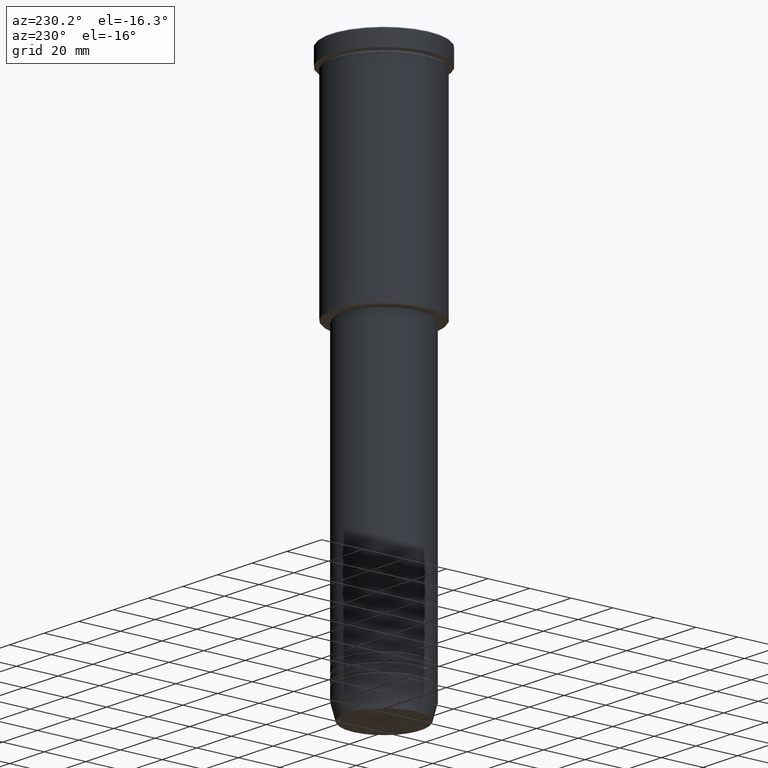
[diagram: clean part render]
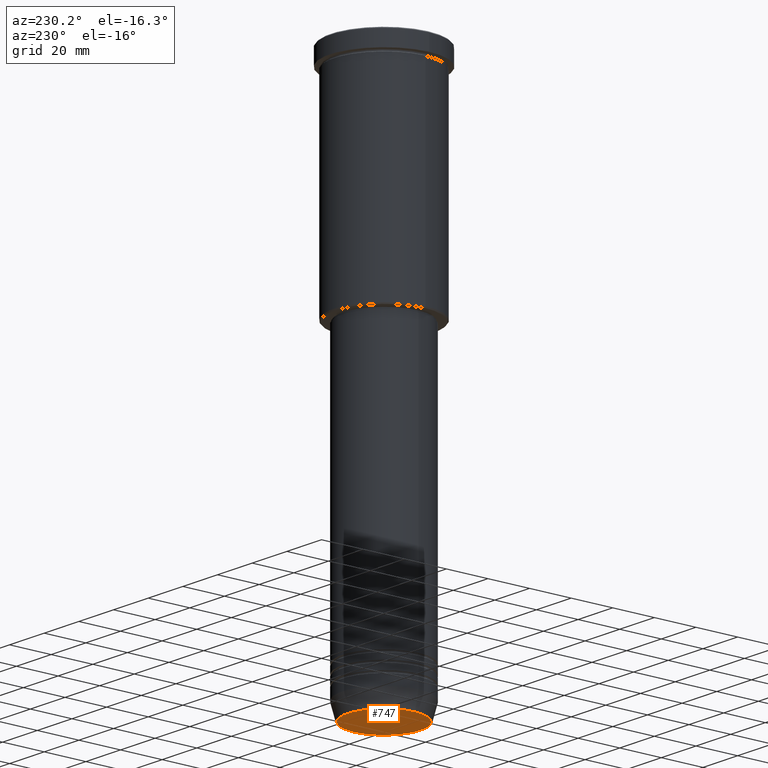
[diagram: same view with one face highlighted and labeled with its STEP entity id]
A machine part, auxiliary view. The second image highlights one B-rep face of the part: STEP entity #747.
In plain terms, the highlighted planar face has unit normal (0, -0, 1).
Its self-contained STEP definition (entity closure, byte-faithful):
#27 = CIRCLE ( 'NONE', #751, 17.47274296656153680 ) ;
#70 = DIRECTION ( 'NONE',  ( 1.000000000000000000, 0.000000000000000000, 0.000000000000000000 ) ) ;
#218 = ORIENTED_EDGE ( 'NONE', *, *, #245, .T. ) ;
#232 = FACE_OUTER_BOUND ( 'NONE', #384, .T. ) ;
#245 = EDGE_CURVE ( 'NONE', #1145, #954, #27, .T. ) ;
#294 = CARTESIAN_POINT ( 'NONE',  ( 0.000000000000000000, 0.000000000000000000, -260.0000000000000000 ) ) ;
#352 = DIRECTION ( 'NONE',  ( 0.000000000000000000, 0.000000000000000000, -1.000000000000000000 ) ) ;
#372 = EDGE_CURVE ( 'NONE', #954, #1145, #636, .T. ) ;
#384 = EDGE_LOOP ( 'NONE', ( #218, #491 ) ) ;
#411 = PLANE ( 'NONE',  #1112 ) ;
#491 = ORIENTED_EDGE ( 'NONE', *, *, #372, .T. ) ;
#535 = CARTESIAN_POINT ( 'NONE',  ( 0.000000000000000000, 0.000000000000000000, -260.0000000000000000 ) ) ;
#636 = CIRCLE ( 'NONE', #963, 17.47274296656153680 ) ;
#747 = ADVANCED_FACE ( 'NONE', ( #232 ), #411, .F. ) ;
#751 = AXIS2_PLACEMENT_3D ( 'NONE', #535, #352, #817 ) ;
#790 = CARTESIAN_POINT ( 'NONE',  ( 0.000000000000000000, 0.000000000000000000, -260.0000000000000000 ) ) ;
#817 = DIRECTION ( 'NONE',  ( 1.000000000000000000, 0.000000000000000000, 0.000000000000000000 ) ) ;
#822 = CARTESIAN_POINT ( 'NONE',  ( -17.47274296656153680, 2.169366823916868503E-15, -260.0000000000000000 ) ) ;
#845 = CARTESIAN_POINT ( 'NONE',  ( 17.47274296656153680, 0.000000000000000000, -260.0000000000000000 ) ) ;
#857 = DIRECTION ( 'NONE',  ( 0.000000000000000000, 0.000000000000000000, -1.000000000000000000 ) ) ;
#923 = DIRECTION ( 'NONE',  ( 1.000000000000000000, 0.000000000000000000, 0.000000000000000000 ) ) ;
#954 = VERTEX_POINT ( 'NONE', #822 ) ;
#958 = DIRECTION ( 'NONE',  ( 0.000000000000000000, -0.000000000000000000, 1.000000000000000000 ) ) ;
#963 = AXIS2_PLACEMENT_3D ( 'NONE', #294, #857, #923 ) ;
#1112 = AXIS2_PLACEMENT_3D ( 'NONE', #790, #958, #70 ) ;
#1145 = VERTEX_POINT ( 'NONE', #845 ) ;